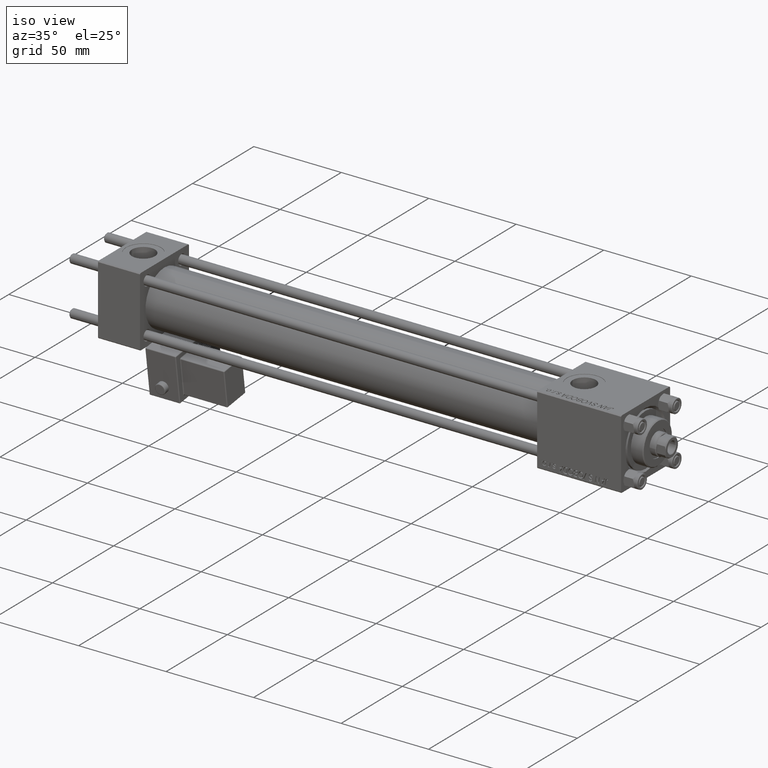
[diagram: clean part render]
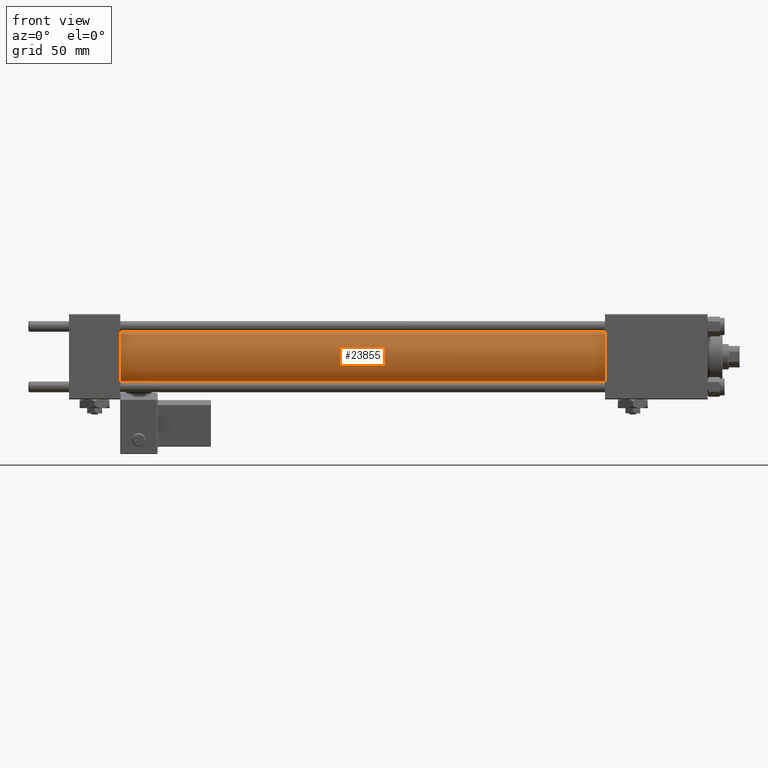
[diagram: tour spotlight — one face highlighted and labeled with its STEP entity id]
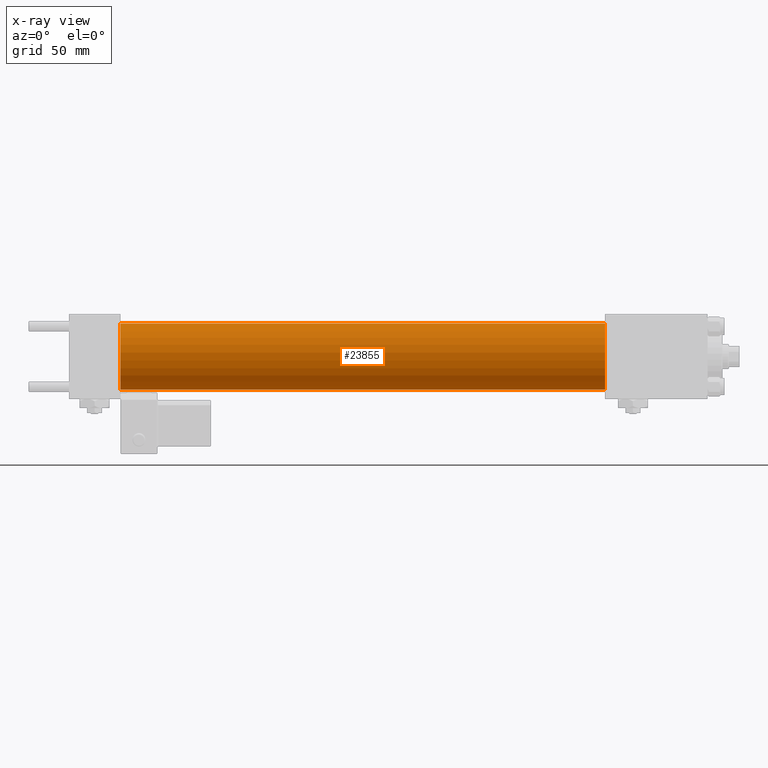
[diagram: x-ray of the same camera — body ghosted, this tour face saturated]
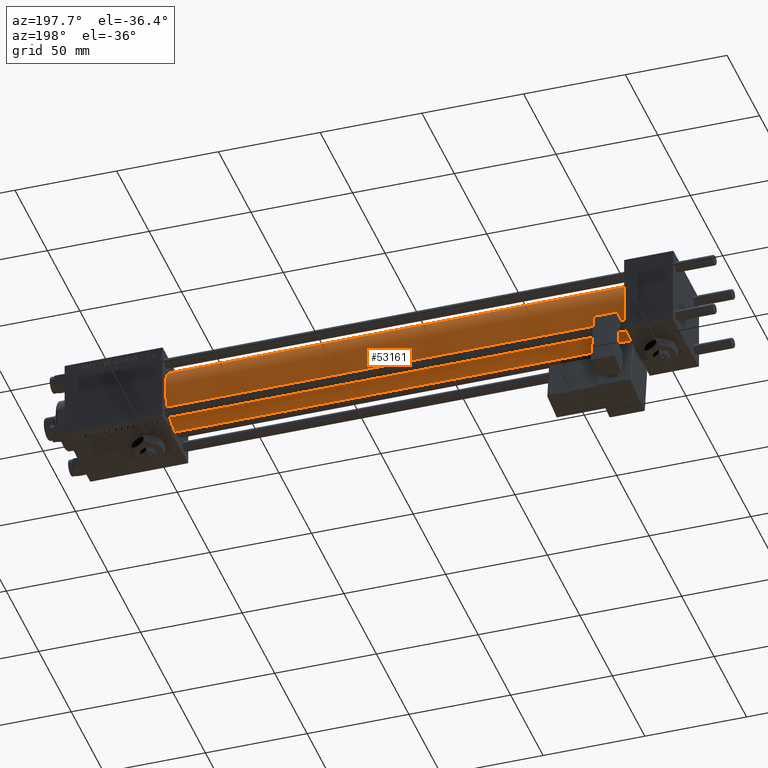
[diagram: tour spotlight — one face highlighted and labeled with its STEP entity id]
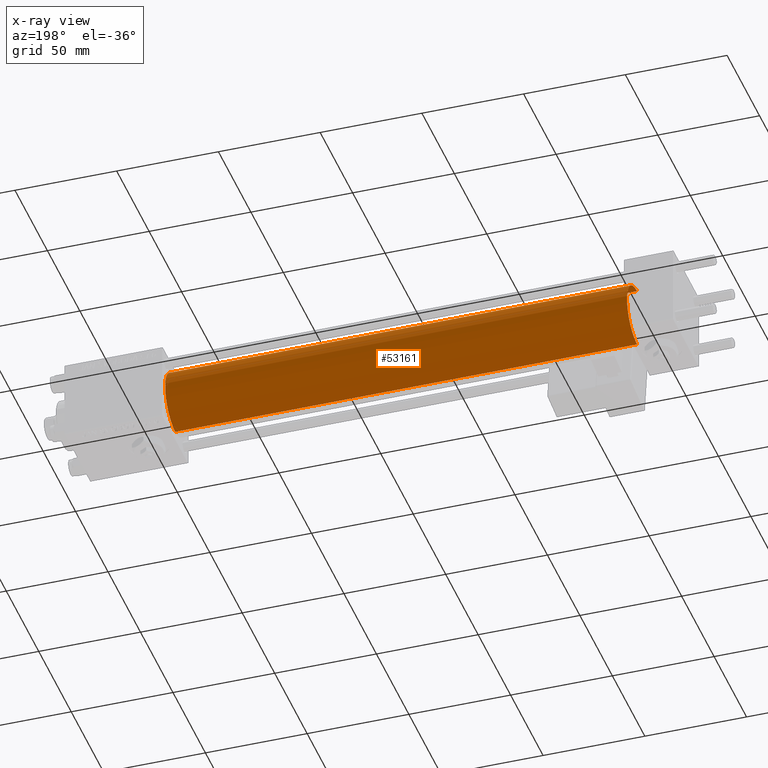
[diagram: x-ray of the same camera — body ghosted, this tour face saturated]
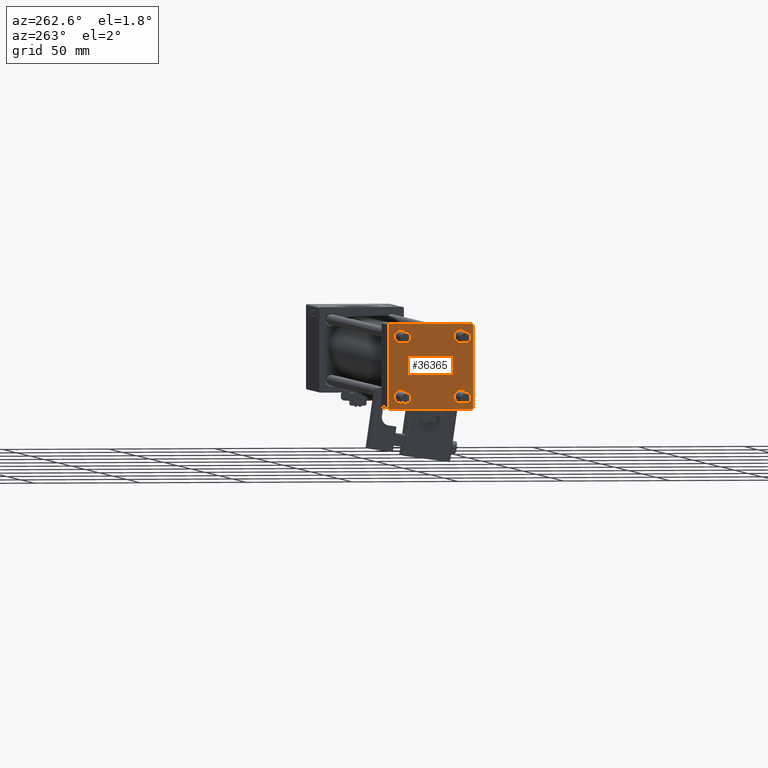
[diagram: tour spotlight — one face highlighted and labeled with its STEP entity id]
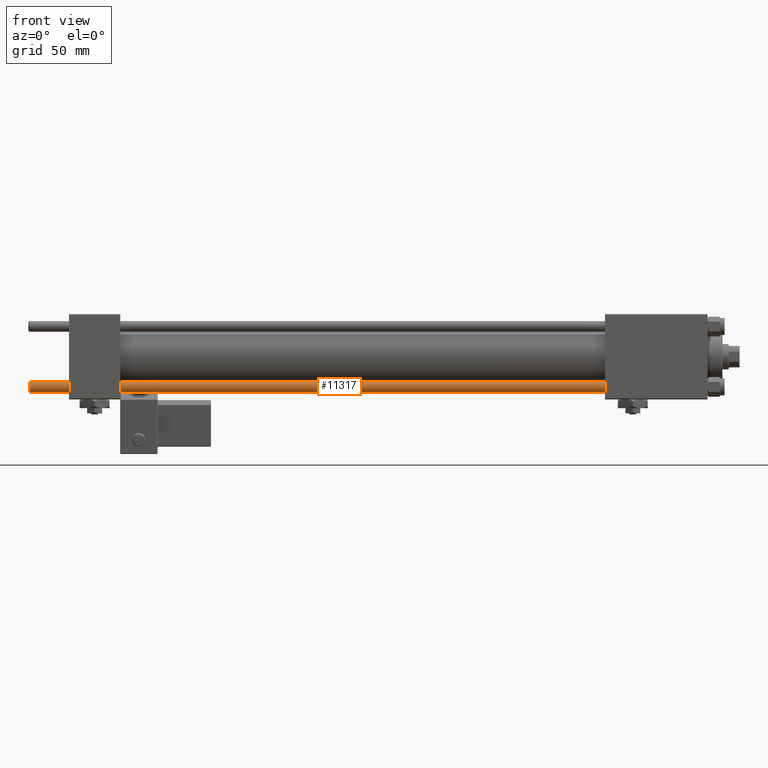
[diagram: tour spotlight — one face highlighted and labeled with its STEP entity id]
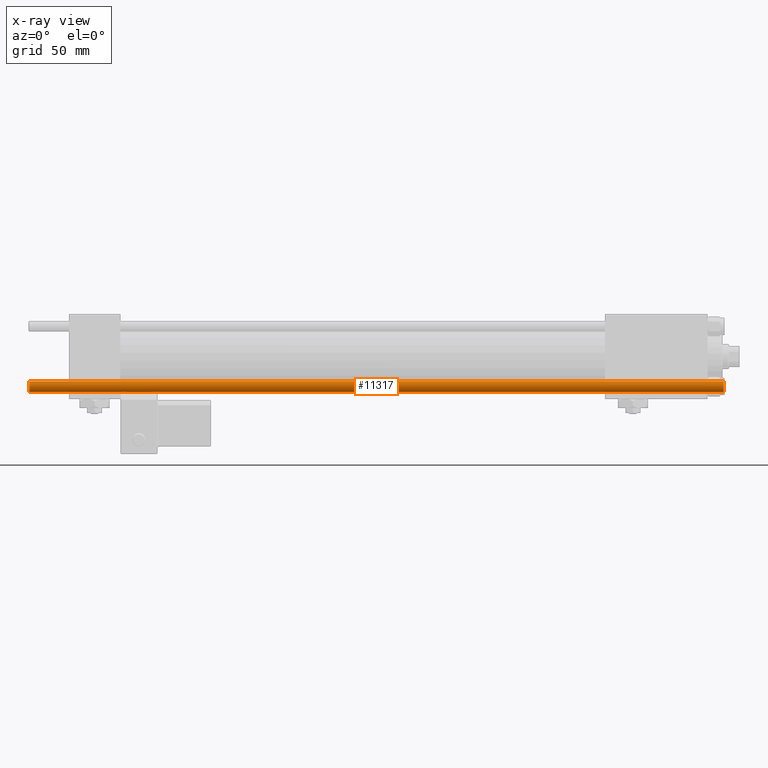
[diagram: x-ray of the same camera — body ghosted, this tour face saturated]
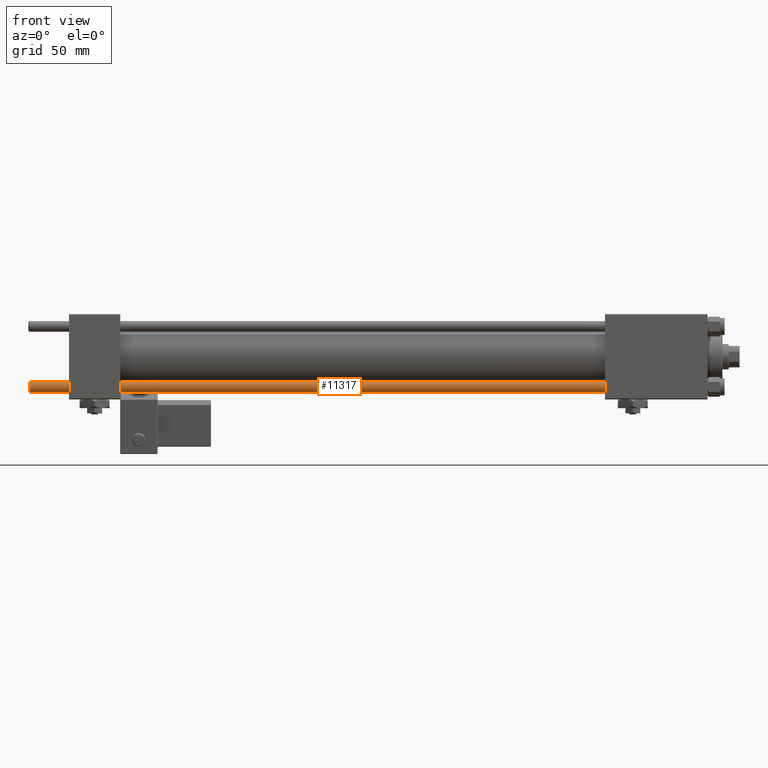
[diagram: tour spotlight — one face highlighted and labeled with its STEP entity id]
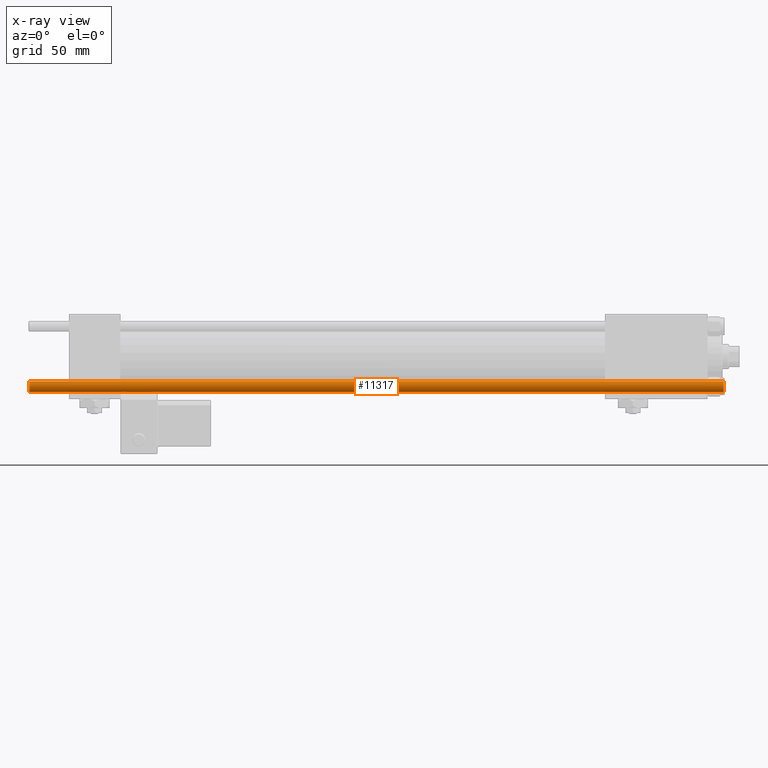
[diagram: x-ray of the same camera — body ghosted, this tour face saturated]
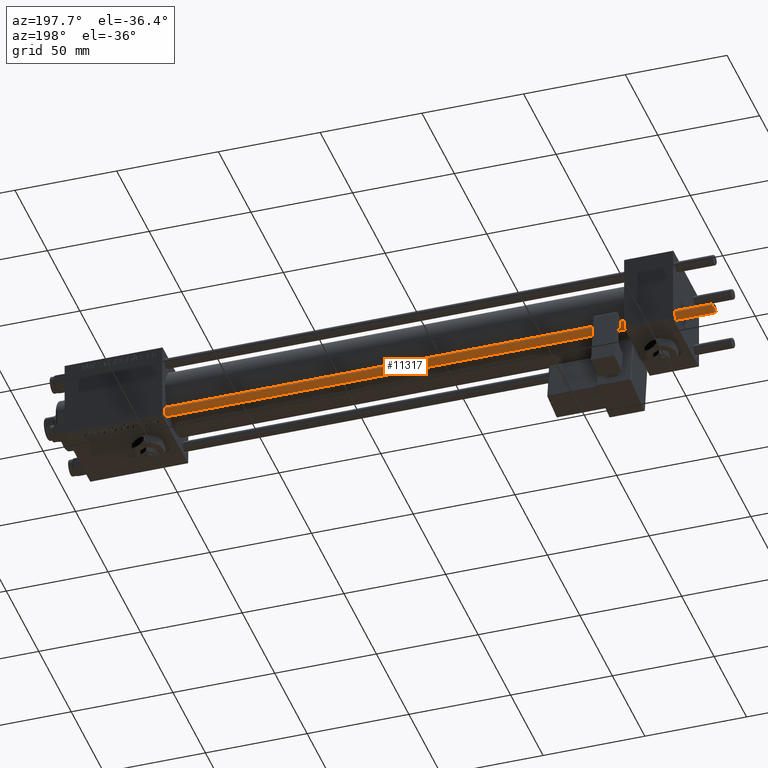
[diagram: tour spotlight — one face highlighted and labeled with its STEP entity id]
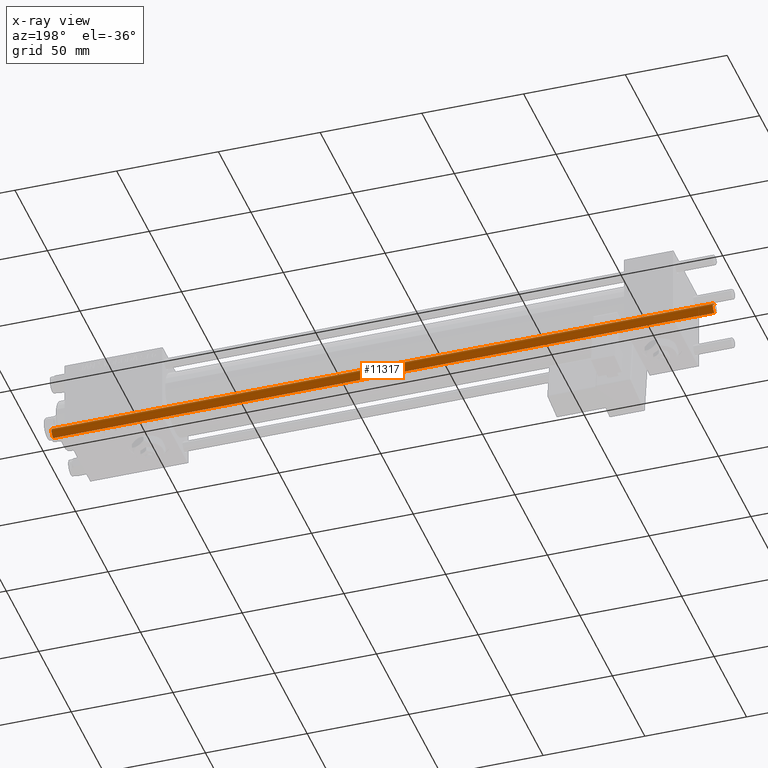
[diagram: x-ray of the same camera — body ghosted, this tour face saturated]
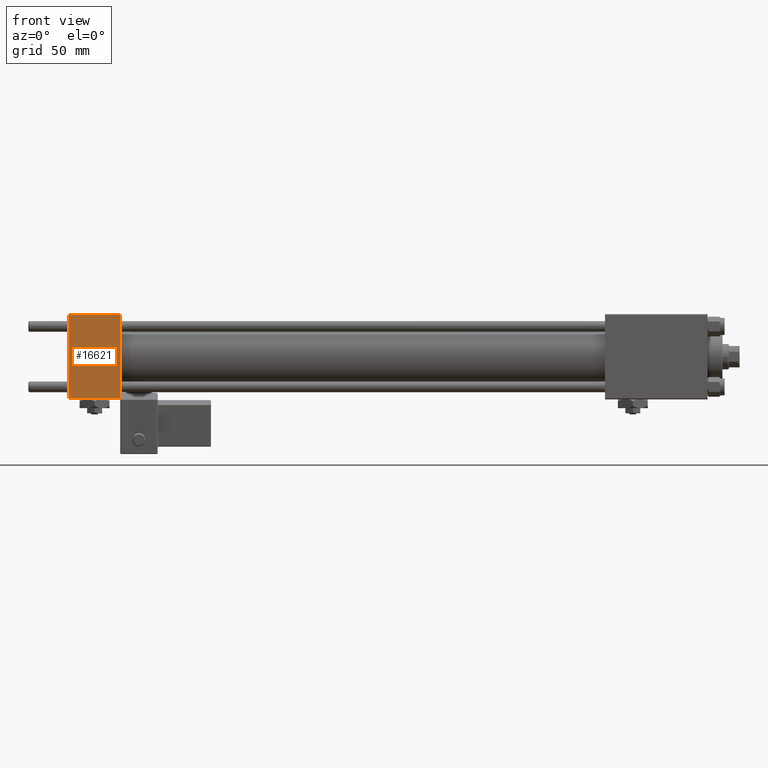
[diagram: tour spotlight — one face highlighted and labeled with its STEP entity id]
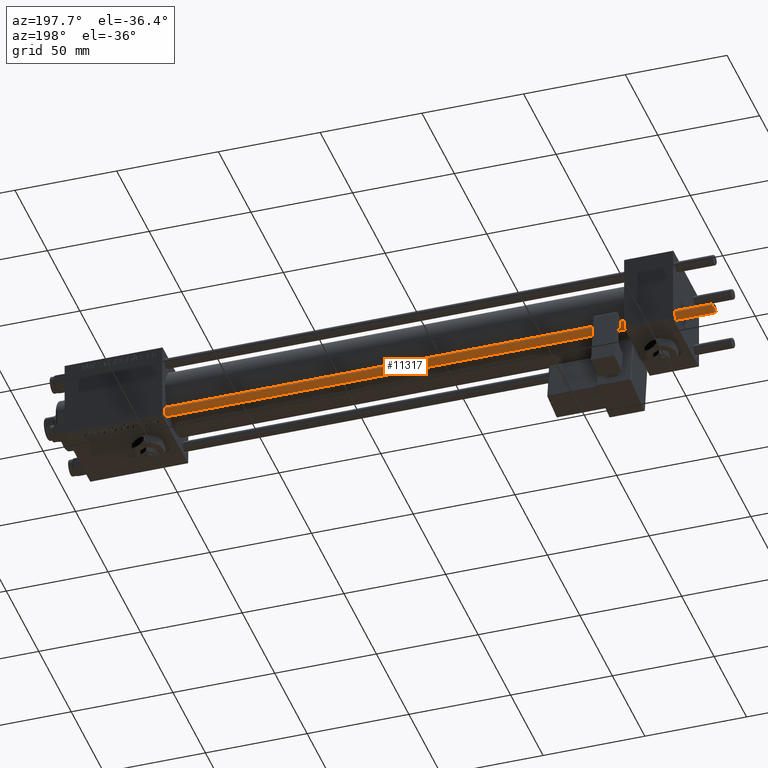
[diagram: tour spotlight — one face highlighted and labeled with its STEP entity id]
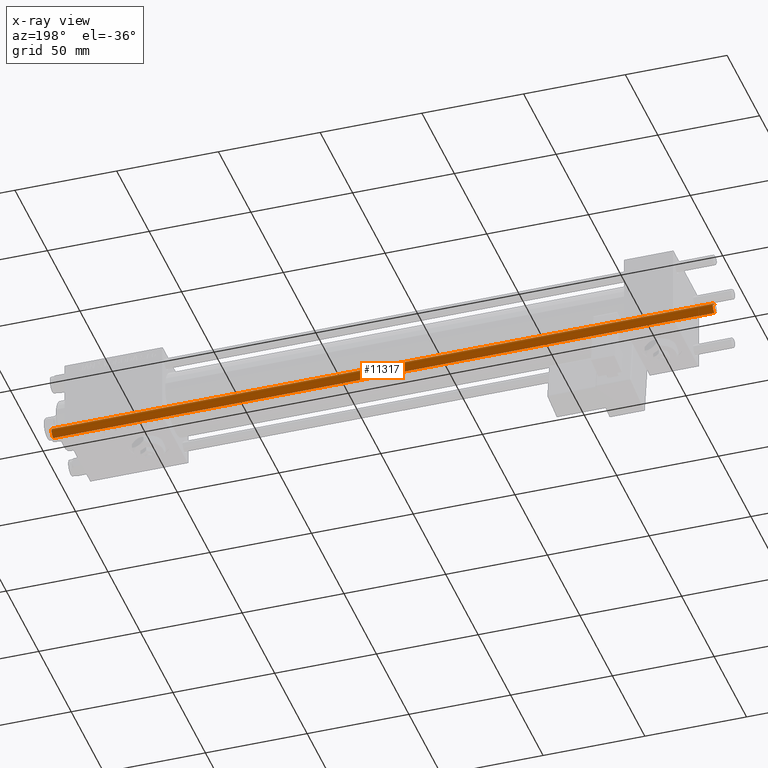
[diagram: x-ray of the same camera — body ghosted, this tour face saturated]
A machine part: a face-by-face anatomy tour. The part has 1311 B-rep faces; the first image is the clean iso view, then the 8 largest visible faces are spotlighted one at a time (largest first), each with its STEP entity span.

Face 1 — front view, entity #23855. An x-ray twin of the same camera follows (body ghosted, this face saturated) — the face is partly hidden behind the body. In plain terms, the highlighted cylindrical surface (edge-blend (fillet) strip) has radius 15.5 mm, axis along (-1, -0, -0).
Definition (entity closure, byte-faithful):
#946 = CYLINDRICAL_SURFACE ( 'NONE', #10931, 15.50000000000000000 ) ;
#2998 = DIRECTION ( 'NONE',  ( 0.000000000000000000, 0.000000000000000000, 1.000000000000000000 ) ) ;
#4496 = CARTESIAN_POINT ( 'NONE',  ( 251.0000000000000000, 0.000000000000000000, 0.000000000000000000 ) ) ;
#6963 = ORIENTED_EDGE ( 'NONE', *, *, #23385, .T. ) ;
#8125 = LINE ( 'NONE', #16332, #23955 ) ;
#8889 = DIRECTION ( 'NONE',  ( -1.000000000000000000, -0.000000000000000000, -0.000000000000000000 ) ) ;
#9141 = ORIENTED_EDGE ( 'NONE', *, *, #22615, .F. ) ;
#10931 = AXIS2_PLACEMENT_3D ( 'NONE', #4496, #8889, #21180 ) ;
#12029 = CARTESIAN_POINT ( 'NONE',  ( 23.99999999999999289, 0.000000000000000000, 15.50000000000000000 ) ) ;
#12908 = DIRECTION ( 'NONE',  ( 1.000000000000000000, 0.000000000000000000, 0.000000000000000000 ) ) ;
#13175 = CARTESIAN_POINT ( 'NONE',  ( 251.0000000000000000, 0.000000000000000000, 0.000000000000000000 ) ) ;
#13550 = VERTEX_POINT ( 'NONE', #22184 ) ;
#15181 = CIRCLE ( 'NONE', #21295, 15.50000000000000000 ) ;
#16332 = CARTESIAN_POINT ( 'NONE',  ( 251.0000000000000000, 0.000000000000000000, 15.50000000000000000 ) ) ;
#18175 = FACE_OUTER_BOUND ( 'NONE', #26411, .T. ) ;
#19003 = DIRECTION ( 'NONE',  ( -1.000000000000000000, -0.000000000000000000, -0.000000000000000000 ) ) ;
#19410 = DIRECTION ( 'NONE',  ( 1.000000000000000000, 0.000000000000000000, 0.000000000000000000 ) ) ;
#21180 = DIRECTION ( 'NONE',  ( 0.000000000000000000, 0.000000000000000000, 1.000000000000000000 ) ) ;
#21295 = AXIS2_PLACEMENT_3D ( 'NONE', #13175, #12908, #33673 ) ;
#22184 = CARTESIAN_POINT ( 'NONE',  ( 251.0000000000000000, 0.000000000000000000, 15.50000000000000000 ) ) ;
#22576 = LINE ( 'NONE', #48237, #26723 ) ;
#22615 = EDGE_CURVE ( 'NONE', #13550, #29349, #15181, .T. ) ;
#23385 = EDGE_CURVE ( 'NONE', #13550, #24224, #8125, .T. ) ;
#23855 = ADVANCED_FACE ( 'NONE', ( #18175 ), #946, .T. ) ;
#23955 = VECTOR ( 'NONE', #24268, 1000.000000000000000 ) ;
#24224 = VERTEX_POINT ( 'NONE', #12029 ) ;
#24268 = DIRECTION ( 'NONE',  ( -1.000000000000000000, -0.000000000000000000, -0.000000000000000000 ) ) ;
#24856 = CARTESIAN_POINT ( 'NONE',  ( 251.0000000000000000, 1.898202538678397163E-15, -15.50000000000000000 ) ) ;
#26411 = EDGE_LOOP ( 'NONE', ( #45268, #9141, #6963, #29631 ) ) ;
#26723 = VECTOR ( 'NONE', #19003, 1000.000000000000000 ) ;
#29252 = EDGE_CURVE ( 'NONE', #24224, #38761, #39061, .T. ) ;
#29349 = VERTEX_POINT ( 'NONE', #24856 ) ;
#29631 = ORIENTED_EDGE ( 'NONE', *, *, #29252, .T. ) ;
#33673 = DIRECTION ( 'NONE',  ( 0.000000000000000000, 0.000000000000000000, -1.000000000000000000 ) ) ;
#36964 = CARTESIAN_POINT ( 'NONE',  ( 23.99999999999999289, 1.898202538678397163E-15, -15.50000000000000000 ) ) ;
#38761 = VERTEX_POINT ( 'NONE', #36964 ) ;
#39061 = CIRCLE ( 'NONE', #44282, 15.50000000000000000 ) ;
#44282 = AXIS2_PLACEMENT_3D ( 'NONE', #47846, #19410, #2998 ) ;
#45268 = ORIENTED_EDGE ( 'NONE', *, *, #51855, .F. ) ;
#47846 = CARTESIAN_POINT ( 'NONE',  ( 23.99999999999999289, 0.000000000000000000, 0.000000000000000000 ) ) ;
#48237 = CARTESIAN_POINT ( 'NONE',  ( 251.0000000000000000, 1.898202538678397163E-15, -15.50000000000000000 ) ) ;
#51855 = EDGE_CURVE ( 'NONE', #29349, #38761, #22576, .T. ) ;

Face 2 — auxiliary view, entity #53161. An x-ray twin of the same camera follows (body ghosted, this face saturated) — the face is partly hidden behind the body. In plain terms, the highlighted cylindrical surface (edge-blend (fillet) strip) has radius 15.5 mm, axis along (-1, -0, -0).
Definition (entity closure, byte-faithful):
#1699 = ORIENTED_EDGE ( 'NONE', *, *, #51855, .T. ) ;
#4000 = DIRECTION ( 'NONE',  ( -1.000000000000000000, -0.000000000000000000, -0.000000000000000000 ) ) ;
#4803 = AXIS2_PLACEMENT_3D ( 'NONE', #23966, #49890, #16028 ) ;
#5895 = AXIS2_PLACEMENT_3D ( 'NONE', #41466, #4000, #29447 ) ;
#8125 = LINE ( 'NONE', #16332, #23955 ) ;
#9059 = EDGE_LOOP ( 'NONE', ( #14645, #1699, #10809, #34525 ) ) ;
#9633 = DIRECTION ( 'NONE',  ( 1.000000000000000000, 0.000000000000000000, 0.000000000000000000 ) ) ;
#10202 = EDGE_CURVE ( 'NONE', #38761, #24224, #41909, .T. ) ;
#10809 = ORIENTED_EDGE ( 'NONE', *, *, #10202, .T. ) ;
#12029 = CARTESIAN_POINT ( 'NONE',  ( 23.99999999999999289, 0.000000000000000000, 15.50000000000000000 ) ) ;
#13550 = VERTEX_POINT ( 'NONE', #22184 ) ;
#14645 = ORIENTED_EDGE ( 'NONE', *, *, #50796, .F. ) ;
#16028 = DIRECTION ( 'NONE',  ( 0.000000000000000000, 0.000000000000000000, -1.000000000000000000 ) ) ;
#16332 = CARTESIAN_POINT ( 'NONE',  ( 251.0000000000000000, 0.000000000000000000, 15.50000000000000000 ) ) ;
#19003 = DIRECTION ( 'NONE',  ( -1.000000000000000000, -0.000000000000000000, -0.000000000000000000 ) ) ;
#22184 = CARTESIAN_POINT ( 'NONE',  ( 251.0000000000000000, 0.000000000000000000, 15.50000000000000000 ) ) ;
#22576 = LINE ( 'NONE', #48237, #26723 ) ;
#22730 = AXIS2_PLACEMENT_3D ( 'NONE', #43518, #9633, #39415 ) ;
#23385 = EDGE_CURVE ( 'NONE', #13550, #24224, #8125, .T. ) ;
#23955 = VECTOR ( 'NONE', #24268, 1000.000000000000000 ) ;
#23966 = CARTESIAN_POINT ( 'NONE',  ( 251.0000000000000000, 0.000000000000000000, 0.000000000000000000 ) ) ;
#24224 = VERTEX_POINT ( 'NONE', #12029 ) ;
#24260 = FACE_OUTER_BOUND ( 'NONE', #9059, .T. ) ;
#24268 = DIRECTION ( 'NONE',  ( -1.000000000000000000, -0.000000000000000000, -0.000000000000000000 ) ) ;
#24856 = CARTESIAN_POINT ( 'NONE',  ( 251.0000000000000000, 1.898202538678397163E-15, -15.50000000000000000 ) ) ;
#26723 = VECTOR ( 'NONE', #19003, 1000.000000000000000 ) ;
#28364 = CYLINDRICAL_SURFACE ( 'NONE', #5895, 15.50000000000000000 ) ;
#29349 = VERTEX_POINT ( 'NONE', #24856 ) ;
#29447 = DIRECTION ( 'NONE',  ( 0.000000000000000000, 0.000000000000000000, 1.000000000000000000 ) ) ;
#34525 = ORIENTED_EDGE ( 'NONE', *, *, #23385, .F. ) ;
#36964 = CARTESIAN_POINT ( 'NONE',  ( 23.99999999999999289, 1.898202538678397163E-15, -15.50000000000000000 ) ) ;
#38761 = VERTEX_POINT ( 'NONE', #36964 ) ;
#39415 = DIRECTION ( 'NONE',  ( 0.000000000000000000, 0.000000000000000000, 1.000000000000000000 ) ) ;
#39746 = CIRCLE ( 'NONE', #4803, 15.50000000000000000 ) ;
#41466 = CARTESIAN_POINT ( 'NONE',  ( 251.0000000000000000, 0.000000000000000000, 0.000000000000000000 ) ) ;
#41909 = CIRCLE ( 'NONE', #22730, 15.50000000000000000 ) ;
#43518 = CARTESIAN_POINT ( 'NONE',  ( 23.99999999999999289, 0.000000000000000000, 0.000000000000000000 ) ) ;
#48237 = CARTESIAN_POINT ( 'NONE',  ( 251.0000000000000000, 1.898202538678397163E-15, -15.50000000000000000 ) ) ;
#49890 = DIRECTION ( 'NONE',  ( 1.000000000000000000, 0.000000000000000000, 0.000000000000000000 ) ) ;
#50796 = EDGE_CURVE ( 'NONE', #29349, #13550, #39746, .T. ) ;
#51855 = EDGE_CURVE ( 'NONE', #29349, #38761, #22576, .T. ) ;
#53161 = ADVANCED_FACE ( 'NONE', ( #24260 ), #28364, .T. ) ;

Face 3 — auxiliary view, entity #36365. In plain terms, the highlighted planar face has unit normal (-1, 0, 0).
Definition (entity closure, byte-faithful):
#1133 = AXIS2_PLACEMENT_3D ( 'NONE', #24377, #51542, #2794 ) ;
#2013 = VERTEX_POINT ( 'NONE', #13546 ) ;
#2659 = DIRECTION ( 'NONE',  ( -0.000000000000000000, 0.000000000000000000, 1.000000000000000000 ) ) ;
#2794 = DIRECTION ( 'NONE',  ( 0.000000000000000000, 0.000000000000000000, 1.000000000000000000 ) ) ;
#3087 = AXIS2_PLACEMENT_3D ( 'NONE', #46124, #8701, #21265 ) ;
#3697 = EDGE_CURVE ( 'NONE', #7763, #49478, #53796, .T. ) ;
#3941 = EDGE_CURVE ( 'NONE', #25539, #50806, #9537, .T. ) ;
#4336 = VECTOR ( 'NONE', #24572, 1000.000000000000114 ) ;
#4453 = EDGE_CURVE ( 'NONE', #50806, #2013, #49306, .T. ) ;
#4508 = ORIENTED_EDGE ( 'NONE', *, *, #42583, .T. ) ;
#4652 = AXIS2_PLACEMENT_3D ( 'NONE', #13562, #9470, #25603 ) ;
#5639 = EDGE_CURVE ( 'NONE', #7875, #25539, #45423, .T. ) ;
#6237 = FACE_BOUND ( 'NONE', #43883, .T. ) ;
#6513 = CARTESIAN_POINT ( 'NONE',  ( 0.000000000000000000, -14.14999999999999503, -11.15000000000000391 ) ) ;
#6751 = ORIENTED_EDGE ( 'NONE', *, *, #23759, .T. ) ;
#6768 = FACE_BOUND ( 'NONE', #9642, .T. ) ;
#6835 = DIRECTION ( 'NONE',  ( 0.000000000000000000, 0.7071067811865425767, -0.7071067811865525687 ) ) ;
#6919 = VERTEX_POINT ( 'NONE', #20231 ) ;
#7040 = PLANE ( 'NONE',  #25355 ) ;
#7763 = VERTEX_POINT ( 'NONE', #11350 ) ;
#7875 = VERTEX_POINT ( 'NONE', #26068 ) ;
#7891 = CARTESIAN_POINT ( 'NONE',  ( -0.000000000000000000, -19.74999999999992539, 19.75000000000006395 ) ) ;
#8701 = DIRECTION ( 'NONE',  ( 1.000000000000000000, 0.000000000000000000, 0.000000000000000000 ) ) ;
#9470 = DIRECTION ( 'NONE',  ( 1.000000000000000000, 0.000000000000000000, 0.000000000000000000 ) ) ;
#9537 = LINE ( 'NONE', #13628, #42662 ) ;
#9642 = EDGE_LOOP ( 'NONE', ( #36153, #39925 ) ) ;
#9657 = AXIS2_PLACEMENT_3D ( 'NONE', #36312, #48608, #32201 ) ;
#9813 = DIRECTION ( 'NONE',  ( 0.000000000000000000, -1.000000000000000000, 1.734723475976807094E-16 ) ) ;
#9975 = CARTESIAN_POINT ( 'NONE',  ( 0.000000000000000000, -14.14999999999999503, -17.15000000000000568 ) ) ;
#10002 = ORIENTED_EDGE ( 'NONE', *, *, #42555, .T. ) ;
#10573 = EDGE_CURVE ( 'NONE', #52975, #18391, #31457, .T. ) ;
#10893 = CIRCLE ( 'NONE', #26582, 3.000000000000000888 ) ;
#11258 = VECTOR ( 'NONE', #6835, 999.9999999999998863 ) ;
#11350 = CARTESIAN_POINT ( 'NONE',  ( 0.000000000000000000, 19.50000000000000000, 20.00000000000000000 ) ) ;
#11839 = EDGE_CURVE ( 'NONE', #23688, #44933, #22804, .T. ) ;
#12324 = VECTOR ( 'NONE', #37570, 1000.000000000000000 ) ;
#12437 = DIRECTION ( 'NONE',  ( 1.000000000000000000, 0.000000000000000000, 0.000000000000000000 ) ) ;
#12853 = CARTESIAN_POINT ( 'NONE',  ( 0.000000000000000000, 14.14999999999999858, 11.14999999999999858 ) ) ;
#12856 = VERTEX_POINT ( 'NONE', #30795 ) ;
#13099 = EDGE_CURVE ( 'NONE', #7763, #6919, #21160, .T. ) ;
#13546 = CARTESIAN_POINT ( 'NONE',  ( 0.000000000000000000, -20.00000000000000000, -19.49999999999999645 ) ) ;
#13562 = CARTESIAN_POINT ( 'NONE',  ( 0.000000000000000000, 14.14999999999999858, -14.15000000000000036 ) ) ;
#13608 = ORIENTED_EDGE ( 'NONE', *, *, #5639, .T. ) ;
#13628 = CARTESIAN_POINT ( 'NONE',  ( 0.000000000000000000, 20.00000000000000000, -20.00000000000000711 ) ) ;
#14691 = DIRECTION ( 'NONE',  ( 1.000000000000000000, 0.000000000000000000, 0.000000000000000000 ) ) ;
#15772 = DIRECTION ( 'NONE',  ( 0.000000000000000000, 0.000000000000000000, 1.000000000000000000 ) ) ;
#15814 = CARTESIAN_POINT ( 'NONE',  ( 0.000000000000000000, -20.00000000000000355, 19.49999999999998224 ) ) ;
#15959 = CIRCLE ( 'NONE', #1133, 3.000000000000000888 ) ;
#16402 = EDGE_CURVE ( 'NONE', #18391, #52975, #15959, .T. ) ;
#16527 = DIRECTION ( 'NONE',  ( 0.000000000000000000, 8.673617379884036705E-17, -1.000000000000000000 ) ) ;
#16722 = CIRCLE ( 'NONE', #28927, 3.000000000000000888 ) ;
#17646 = EDGE_LOOP ( 'NONE', ( #6751, #46071 ) ) ;
#18045 = CARTESIAN_POINT ( 'NONE',  ( 0.000000000000000000, 20.00000000000000000, 19.49999999999999289 ) ) ;
#18391 = VERTEX_POINT ( 'NONE', #9975 ) ;
#19012 = DIRECTION ( 'NONE',  ( 0.000000000000000000, -0.7071067811865401342, 0.7071067811865549002 ) ) ;
#19605 = CARTESIAN_POINT ( 'NONE',  ( 0.000000000000000000, -14.14999999999999503, 14.15000000000000391 ) ) ;
#19877 = FACE_BOUND ( 'NONE', #17646, .T. ) ;
#20231 = CARTESIAN_POINT ( 'NONE',  ( 0.000000000000000000, -19.49999999999999289, 19.99999999999998934 ) ) ;
#20655 = CARTESIAN_POINT ( 'NONE',  ( 0.000000000000000000, -19.50000000000000711, -20.00000000000000000 ) ) ;
#21160 = LINE ( 'NONE', #26350, #12324 ) ;
#21265 = DIRECTION ( 'NONE',  ( 0.000000000000000000, 0.000000000000000000, 1.000000000000000000 ) ) ;
#22017 = EDGE_LOOP ( 'NONE', ( #10002, #13608, #34558, #46147, #29358, #28859, #28181, #29723 ) ) ;
#22156 = VERTEX_POINT ( 'NONE', #40128 ) ;
#22537 = VECTOR ( 'NONE', #19012, 1000.000000000000000 ) ;
#22804 = CIRCLE ( 'NONE', #41994, 3.000000000000000888 ) ;
#23033 = CARTESIAN_POINT ( 'NONE',  ( 0.000000000000000000, -14.14999999999999503, 17.15000000000000568 ) ) ;
#23450 = CARTESIAN_POINT ( 'NONE',  ( 0.000000000000000000, 0.000000000000000000, 0.000000000000000000 ) ) ;
#23688 = VERTEX_POINT ( 'NONE', #28844 ) ;
#23759 = EDGE_CURVE ( 'NONE', #44933, #23688, #10893, .T. ) ;
#24193 = CARTESIAN_POINT ( 'NONE',  ( 0.000000000000000000, 19.50000000000000711, -20.00000000000000711 ) ) ;
#24203 = DIRECTION ( 'NONE',  ( 0.000000000000000000, 0.000000000000000000, 1.000000000000000000 ) ) ;
#24377 = CARTESIAN_POINT ( 'NONE',  ( 0.000000000000000000, -14.14999999999999503, -14.15000000000000391 ) ) ;
#24572 = DIRECTION ( 'NONE',  ( -0.000000000000000000, 0.7071067811865500152, 0.7071067811865451302 ) ) ;
#25355 = AXIS2_PLACEMENT_3D ( 'NONE', #23450, #40117, #2659 ) ;
#25539 = VERTEX_POINT ( 'NONE', #24193 ) ;
#25603 = DIRECTION ( 'NONE',  ( 0.000000000000000000, 0.000000000000000000, 1.000000000000000000 ) ) ;
#25629 = CIRCLE ( 'NONE', #4652, 3.000000000000000888 ) ;
#26068 = CARTESIAN_POINT ( 'NONE',  ( 0.000000000000000000, 20.00000000000000000, -19.50000000000002132 ) ) ;
#26350 = CARTESIAN_POINT ( 'NONE',  ( 0.000000000000000000, 20.00000000000000000, 20.00000000000000000 ) ) ;
#26582 = AXIS2_PLACEMENT_3D ( 'NONE', #32663, #12437, #24203 ) ;
#27142 = VERTEX_POINT ( 'NONE', #12853 ) ;
#27144 = AXIS2_PLACEMENT_3D ( 'NONE', #46996, #48076, #34976 ) ;
#27216 = EDGE_LOOP ( 'NONE', ( #4508, #40152 ) ) ;
#27757 = CARTESIAN_POINT ( 'NONE',  ( 0.000000000000000000, -19.75000000000020961, -19.74999999999979394 ) ) ;
#28181 = ORIENTED_EDGE ( 'NONE', *, *, #13099, .F. ) ;
#28675 = LINE ( 'NONE', #7891, #4336 ) ;
#28844 = CARTESIAN_POINT ( 'NONE',  ( 0.000000000000000000, -14.14999999999999503, 11.15000000000000213 ) ) ;
#28859 = ORIENTED_EDGE ( 'NONE', *, *, #35496, .T. ) ;
#28927 = AXIS2_PLACEMENT_3D ( 'NONE', #47206, #14691, #31355 ) ;
#29358 = ORIENTED_EDGE ( 'NONE', *, *, #48147, .F. ) ;
#29723 = ORIENTED_EDGE ( 'NONE', *, *, #3697, .T. ) ;
#30554 = LINE ( 'NONE', #51305, #44656 ) ;
#30795 = CARTESIAN_POINT ( 'NONE',  ( 0.000000000000000000, 14.14999999999999858, -11.15000000000000036 ) ) ;
#31355 = DIRECTION ( 'NONE',  ( 0.000000000000000000, 0.000000000000000000, 1.000000000000000000 ) ) ;
#31457 = CIRCLE ( 'NONE', #9657, 3.000000000000000888 ) ;
#31788 = VERTEX_POINT ( 'NONE', #40155 ) ;
#32201 = DIRECTION ( 'NONE',  ( 0.000000000000000000, 0.000000000000000000, 1.000000000000000000 ) ) ;
#32420 = ORIENTED_EDGE ( 'NONE', *, *, #10573, .T. ) ;
#32663 = CARTESIAN_POINT ( 'NONE',  ( 0.000000000000000000, -14.14999999999999503, 14.15000000000000391 ) ) ;
#32998 = VECTOR ( 'NONE', #53617, 1000.000000000000000 ) ;
#34558 = ORIENTED_EDGE ( 'NONE', *, *, #3941, .T. ) ;
#34976 = DIRECTION ( 'NONE',  ( 0.000000000000000000, 0.000000000000000000, 1.000000000000000000 ) ) ;
#35496 = EDGE_CURVE ( 'NONE', #49634, #6919, #28675, .T. ) ;
#36021 = FACE_BOUND ( 'NONE', #27216, .T. ) ;
#36153 = ORIENTED_EDGE ( 'NONE', *, *, #50647, .T. ) ;
#36312 = CARTESIAN_POINT ( 'NONE',  ( 0.000000000000000000, -14.14999999999999503, -14.15000000000000391 ) ) ;
#36365 = ADVANCED_FACE ( 'NONE', ( #19877, #6237, #6768, #36021, #51875 ), #7040, .T. ) ;
#36703 = CARTESIAN_POINT ( 'NONE',  ( -0.000000000000000000, 19.74999999999986855, -19.75000000000014211 ) ) ;
#37025 = CARTESIAN_POINT ( 'NONE',  ( 0.000000000000000000, -20.00000000000000355, 19.99999999999998934 ) ) ;
#37570 = DIRECTION ( 'NONE',  ( 0.000000000000000000, -1.000000000000000000, -2.602085213965210149E-16 ) ) ;
#39925 = ORIENTED_EDGE ( 'NONE', *, *, #47031, .T. ) ;
#40117 = DIRECTION ( 'NONE',  ( -1.000000000000000000, 0.000000000000000000, -0.000000000000000000 ) ) ;
#40128 = CARTESIAN_POINT ( 'NONE',  ( 0.000000000000000000, 14.14999999999999858, -17.15000000000000213 ) ) ;
#40152 = ORIENTED_EDGE ( 'NONE', *, *, #40873, .T. ) ;
#40155 = CARTESIAN_POINT ( 'NONE',  ( 0.000000000000000000, 14.14999999999999858, 17.15000000000000568 ) ) ;
#40873 = EDGE_CURVE ( 'NONE', #27142, #31788, #44582, .T. ) ;
#41115 = LINE ( 'NONE', #37025, #50096 ) ;
#41994 = AXIS2_PLACEMENT_3D ( 'NONE', #19605, #45004, #15772 ) ;
#42555 = EDGE_CURVE ( 'NONE', #49478, #7875, #30554, .T. ) ;
#42583 = EDGE_CURVE ( 'NONE', #31788, #27142, #16722, .T. ) ;
#42662 = VECTOR ( 'NONE', #9813, 1000.000000000000000 ) ;
#43883 = EDGE_LOOP ( 'NONE', ( #32420, #53720 ) ) ;
#43931 = DIRECTION ( 'NONE',  ( 0.000000000000000000, 0.000000000000000000, -1.000000000000000000 ) ) ;
#44108 = CIRCLE ( 'NONE', #3087, 3.000000000000000888 ) ;
#44283 = CARTESIAN_POINT ( 'NONE',  ( -0.000000000000000000, 19.75000000000013500, 19.74999999999986144 ) ) ;
#44582 = CIRCLE ( 'NONE', #27144, 3.000000000000000888 ) ;
#44656 = VECTOR ( 'NONE', #43931, 1000.000000000000000 ) ;
#44933 = VERTEX_POINT ( 'NONE', #23033 ) ;
#45004 = DIRECTION ( 'NONE',  ( 1.000000000000000000, 0.000000000000000000, 0.000000000000000000 ) ) ;
#45423 = LINE ( 'NONE', #36703, #32998 ) ;
#46071 = ORIENTED_EDGE ( 'NONE', *, *, #11839, .T. ) ;
#46124 = CARTESIAN_POINT ( 'NONE',  ( 0.000000000000000000, 14.14999999999999858, -14.15000000000000036 ) ) ;
#46147 = ORIENTED_EDGE ( 'NONE', *, *, #4453, .T. ) ;
#46996 = CARTESIAN_POINT ( 'NONE',  ( 0.000000000000000000, 14.14999999999999858, 14.15000000000000036 ) ) ;
#47031 = EDGE_CURVE ( 'NONE', #22156, #12856, #25629, .T. ) ;
#47206 = CARTESIAN_POINT ( 'NONE',  ( 0.000000000000000000, 14.14999999999999858, 14.15000000000000036 ) ) ;
#48076 = DIRECTION ( 'NONE',  ( 1.000000000000000000, 0.000000000000000000, 0.000000000000000000 ) ) ;
#48147 = EDGE_CURVE ( 'NONE', #49634, #2013, #41115, .T. ) ;
#48608 = DIRECTION ( 'NONE',  ( 1.000000000000000000, 0.000000000000000000, 0.000000000000000000 ) ) ;
#49306 = LINE ( 'NONE', #27757, #22537 ) ;
#49478 = VERTEX_POINT ( 'NONE', #18045 ) ;
#49634 = VERTEX_POINT ( 'NONE', #15814 ) ;
#50096 = VECTOR ( 'NONE', #16527, 1000.000000000000000 ) ;
#50647 = EDGE_CURVE ( 'NONE', #12856, #22156, #44108, .T. ) ;
#50806 = VERTEX_POINT ( 'NONE', #20655 ) ;
#51305 = CARTESIAN_POINT ( 'NONE',  ( 0.000000000000000000, 20.00000000000000000, 20.00000000000000000 ) ) ;
#51542 = DIRECTION ( 'NONE',  ( 1.000000000000000000, 0.000000000000000000, 0.000000000000000000 ) ) ;
#51875 = FACE_OUTER_BOUND ( 'NONE', #22017, .T. ) ;
#52975 = VERTEX_POINT ( 'NONE', #6513 ) ;
#53617 = DIRECTION ( 'NONE',  ( -0.000000000000000000, -0.7071067811865524577, -0.7071067811865426878 ) ) ;
#53720 = ORIENTED_EDGE ( 'NONE', *, *, #16402, .T. ) ;
#53796 = LINE ( 'NONE', #44283, #11258 ) ;

Face 4 — front view, entity #11317. An x-ray twin of the same camera follows (body ghosted, this face saturated) — the face is partly hidden behind the body. In plain terms, the highlighted cylindrical surface (edge-blend (fillet) strip) has radius 2.5 mm, axis along (1, -0, 0).
Definition (entity closure, byte-faithful):
#2662 = DIRECTION ( 'NONE',  ( 0.000000000000000000, 0.000000000000000000, -1.000000000000000000 ) ) ;
#4456 = CYLINDRICAL_SURFACE ( 'NONE', #12288, 2.500000000000000000 ) ;
#4758 = LINE ( 'NONE', #34000, #39579 ) ;
#6431 = ORIENTED_EDGE ( 'NONE', *, *, #17528, .F. ) ;
#8836 = CARTESIAN_POINT ( 'NONE',  ( 2.500000000000000000, 3.061616997868383141E-16, 0.4999999999999449329 ) ) ;
#9687 = DIRECTION ( 'NONE',  ( -0.000000000000000000, -0.000000000000000000, -1.000000000000000000 ) ) ;
#10142 = AXIS2_PLACEMENT_3D ( 'NONE', #31917, #2662, #44489 ) ;
#11317 = ADVANCED_FACE ( 'NONE', ( #12394 ), #4456, .T. ) ;
#12288 = AXIS2_PLACEMENT_3D ( 'NONE', #41642, #16779, #47293 ) ;
#12346 = DIRECTION ( 'NONE',  ( -0.000000000000000000, -0.000000000000000000, 1.000000000000000000 ) ) ;
#12394 = FACE_OUTER_BOUND ( 'NONE', #22843, .T. ) ;
#13750 = VERTEX_POINT ( 'NONE', #47572 ) ;
#16779 = DIRECTION ( 'NONE',  ( -0.000000000000000000, -0.000000000000000000, -1.000000000000000000 ) ) ;
#17528 = EDGE_CURVE ( 'NONE', #20607, #17584, #4758, .T. ) ;
#17584 = VERTEX_POINT ( 'NONE', #52556 ) ;
#18288 = LINE ( 'NONE', #19078, #34713 ) ;
#18556 = DIRECTION ( 'NONE',  ( -0.000000000000000000, -0.000000000000000000, -1.000000000000000000 ) ) ;
#19078 = CARTESIAN_POINT ( 'NONE',  ( 2.500000000000000000, 3.061616997868383141E-16, 326.0000000000000000 ) ) ;
#20607 = VERTEX_POINT ( 'NONE', #34514 ) ;
#22843 = EDGE_LOOP ( 'NONE', ( #37624, #25669, #31290, #6431 ) ) ;
#24835 = EDGE_CURVE ( 'NONE', #44740, #17584, #53695, .T. ) ;
#25669 = ORIENTED_EDGE ( 'NONE', *, *, #29578, .T. ) ;
#28754 = DIRECTION ( 'NONE',  ( 1.000000000000000000, 0.000000000000000000, 0.000000000000000000 ) ) ;
#29578 = EDGE_CURVE ( 'NONE', #13750, #44740, #18288, .T. ) ;
#31290 = ORIENTED_EDGE ( 'NONE', *, *, #24835, .T. ) ;
#31917 = CARTESIAN_POINT ( 'NONE',  ( 0.000000000000000000, 0.000000000000000000, 325.5000000000000000 ) ) ;
#33681 = CIRCLE ( 'NONE', #10142, 2.500000000000000000 ) ;
#34000 = CARTESIAN_POINT ( 'NONE',  ( -2.500000000000000000, 0.000000000000000000, 326.0000000000000000 ) ) ;
#34514 = CARTESIAN_POINT ( 'NONE',  ( -2.500000000000000000, 0.000000000000000000, 325.5000000000000000 ) ) ;
#34713 = VECTOR ( 'NONE', #18556, 1000.000000000000000 ) ;
#37624 = ORIENTED_EDGE ( 'NONE', *, *, #51963, .T. ) ;
#39579 = VECTOR ( 'NONE', #9687, 1000.000000000000000 ) ;
#41642 = CARTESIAN_POINT ( 'NONE',  ( 0.000000000000000000, 0.000000000000000000, 326.0000000000000000 ) ) ;
#44489 = DIRECTION ( 'NONE',  ( 1.000000000000000000, 0.000000000000000000, 0.000000000000000000 ) ) ;
#44740 = VERTEX_POINT ( 'NONE', #8836 ) ;
#45823 = AXIS2_PLACEMENT_3D ( 'NONE', #49777, #12346, #28754 ) ;
#47293 = DIRECTION ( 'NONE',  ( -1.000000000000000000, 0.000000000000000000, 0.000000000000000000 ) ) ;
#47572 = CARTESIAN_POINT ( 'NONE',  ( 2.500000000000000000, 3.061616997868383141E-16, 325.5000000000000000 ) ) ;
#49777 = CARTESIAN_POINT ( 'NONE',  ( 0.000000000000000000, 0.000000000000000000, 0.4999999999999449329 ) ) ;
#51963 = EDGE_CURVE ( 'NONE', #20607, #13750, #33681, .T. ) ;
#52556 = CARTESIAN_POINT ( 'NONE',  ( -2.500000000000000000, 0.000000000000000000, 0.4999999999999449329 ) ) ;
#53695 = CIRCLE ( 'NONE', #45823, 2.500000000000000000 ) ;

Face 5 — front view, entity #11317. An x-ray twin of the same camera follows (body ghosted, this face saturated) — the face is partly hidden behind the body. In plain terms, the highlighted cylindrical surface (edge-blend (fillet) strip) has radius 2.5 mm, axis along (-1, 0, 0).
Definition (entity closure, byte-faithful):
#2662 = DIRECTION ( 'NONE',  ( 0.000000000000000000, 0.000000000000000000, -1.000000000000000000 ) ) ;
#4456 = CYLINDRICAL_SURFACE ( 'NONE', #12288, 2.500000000000000000 ) ;
#4758 = LINE ( 'NONE', #34000, #39579 ) ;
#6431 = ORIENTED_EDGE ( 'NONE', *, *, #17528, .F. ) ;
#8836 = CARTESIAN_POINT ( 'NONE',  ( 2.500000000000000000, 3.061616997868383141E-16, 0.4999999999999449329 ) ) ;
#9687 = DIRECTION ( 'NONE',  ( -0.000000000000000000, -0.000000000000000000, -1.000000000000000000 ) ) ;
#10142 = AXIS2_PLACEMENT_3D ( 'NONE', #31917, #2662, #44489 ) ;
#11317 = ADVANCED_FACE ( 'NONE', ( #12394 ), #4456, .T. ) ;
#12288 = AXIS2_PLACEMENT_3D ( 'NONE', #41642, #16779, #47293 ) ;
#12346 = DIRECTION ( 'NONE',  ( -0.000000000000000000, -0.000000000000000000, 1.000000000000000000 ) ) ;
#12394 = FACE_OUTER_BOUND ( 'NONE', #22843, .T. ) ;
#13750 = VERTEX_POINT ( 'NONE', #47572 ) ;
#16779 = DIRECTION ( 'NONE',  ( -0.000000000000000000, -0.000000000000000000, -1.000000000000000000 ) ) ;
#17528 = EDGE_CURVE ( 'NONE', #20607, #17584, #4758, .T. ) ;
#17584 = VERTEX_POINT ( 'NONE', #52556 ) ;
#18288 = LINE ( 'NONE', #19078, #34713 ) ;
#18556 = DIRECTION ( 'NONE',  ( -0.000000000000000000, -0.000000000000000000, -1.000000000000000000 ) ) ;
#19078 = CARTESIAN_POINT ( 'NONE',  ( 2.500000000000000000, 3.061616997868383141E-16, 326.0000000000000000 ) ) ;
#20607 = VERTEX_POINT ( 'NONE', #34514 ) ;
#22843 = EDGE_LOOP ( 'NONE', ( #37624, #25669, #31290, #6431 ) ) ;
#24835 = EDGE_CURVE ( 'NONE', #44740, #17584, #53695, .T. ) ;
#25669 = ORIENTED_EDGE ( 'NONE', *, *, #29578, .T. ) ;
#28754 = DIRECTION ( 'NONE',  ( 1.000000000000000000, 0.000000000000000000, 0.000000000000000000 ) ) ;
#29578 = EDGE_CURVE ( 'NONE', #13750, #44740, #18288, .T. ) ;
#31290 = ORIENTED_EDGE ( 'NONE', *, *, #24835, .T. ) ;
#31917 = CARTESIAN_POINT ( 'NONE',  ( 0.000000000000000000, 0.000000000000000000, 325.5000000000000000 ) ) ;
#33681 = CIRCLE ( 'NONE', #10142, 2.500000000000000000 ) ;
#34000 = CARTESIAN_POINT ( 'NONE',  ( -2.500000000000000000, 0.000000000000000000, 326.0000000000000000 ) ) ;
#34514 = CARTESIAN_POINT ( 'NONE',  ( -2.500000000000000000, 0.000000000000000000, 325.5000000000000000 ) ) ;
#34713 = VECTOR ( 'NONE', #18556, 1000.000000000000000 ) ;
#37624 = ORIENTED_EDGE ( 'NONE', *, *, #51963, .T. ) ;
#39579 = VECTOR ( 'NONE', #9687, 1000.000000000000000 ) ;
#41642 = CARTESIAN_POINT ( 'NONE',  ( 0.000000000000000000, 0.000000000000000000, 326.0000000000000000 ) ) ;
#44489 = DIRECTION ( 'NONE',  ( 1.000000000000000000, 0.000000000000000000, 0.000000000000000000 ) ) ;
#44740 = VERTEX_POINT ( 'NONE', #8836 ) ;
#45823 = AXIS2_PLACEMENT_3D ( 'NONE', #49777, #12346, #28754 ) ;
#47293 = DIRECTION ( 'NONE',  ( -1.000000000000000000, 0.000000000000000000, 0.000000000000000000 ) ) ;
#47572 = CARTESIAN_POINT ( 'NONE',  ( 2.500000000000000000, 3.061616997868383141E-16, 325.5000000000000000 ) ) ;
#49777 = CARTESIAN_POINT ( 'NONE',  ( 0.000000000000000000, 0.000000000000000000, 0.4999999999999449329 ) ) ;
#51963 = EDGE_CURVE ( 'NONE', #20607, #13750, #33681, .T. ) ;
#52556 = CARTESIAN_POINT ( 'NONE',  ( -2.500000000000000000, 0.000000000000000000, 0.4999999999999449329 ) ) ;
#53695 = CIRCLE ( 'NONE', #45823, 2.500000000000000000 ) ;

Face 6 — auxiliary view, entity #11317. An x-ray twin of the same camera follows (body ghosted, this face saturated) — the face is partly hidden behind the body. In plain terms, the highlighted cylindrical surface (edge-blend (fillet) strip) has radius 2.5 mm, axis along (-1, -0, -0).
Definition (entity closure, byte-faithful):
#2662 = DIRECTION ( 'NONE',  ( 0.000000000000000000, 0.000000000000000000, -1.000000000000000000 ) ) ;
#4456 = CYLINDRICAL_SURFACE ( 'NONE', #12288, 2.500000000000000000 ) ;
#4758 = LINE ( 'NONE', #34000, #39579 ) ;
#6431 = ORIENTED_EDGE ( 'NONE', *, *, #17528, .F. ) ;
#8836 = CARTESIAN_POINT ( 'NONE',  ( 2.500000000000000000, 3.061616997868383141E-16, 0.4999999999999449329 ) ) ;
#9687 = DIRECTION ( 'NONE',  ( -0.000000000000000000, -0.000000000000000000, -1.000000000000000000 ) ) ;
#10142 = AXIS2_PLACEMENT_3D ( 'NONE', #31917, #2662, #44489 ) ;
#11317 = ADVANCED_FACE ( 'NONE', ( #12394 ), #4456, .T. ) ;
#12288 = AXIS2_PLACEMENT_3D ( 'NONE', #41642, #16779, #47293 ) ;
#12346 = DIRECTION ( 'NONE',  ( -0.000000000000000000, -0.000000000000000000, 1.000000000000000000 ) ) ;
#12394 = FACE_OUTER_BOUND ( 'NONE', #22843, .T. ) ;
#13750 = VERTEX_POINT ( 'NONE', #47572 ) ;
#16779 = DIRECTION ( 'NONE',  ( -0.000000000000000000, -0.000000000000000000, -1.000000000000000000 ) ) ;
#17528 = EDGE_CURVE ( 'NONE', #20607, #17584, #4758, .T. ) ;
#17584 = VERTEX_POINT ( 'NONE', #52556 ) ;
#18288 = LINE ( 'NONE', #19078, #34713 ) ;
#18556 = DIRECTION ( 'NONE',  ( -0.000000000000000000, -0.000000000000000000, -1.000000000000000000 ) ) ;
#19078 = CARTESIAN_POINT ( 'NONE',  ( 2.500000000000000000, 3.061616997868383141E-16, 326.0000000000000000 ) ) ;
#20607 = VERTEX_POINT ( 'NONE', #34514 ) ;
#22843 = EDGE_LOOP ( 'NONE', ( #37624, #25669, #31290, #6431 ) ) ;
#24835 = EDGE_CURVE ( 'NONE', #44740, #17584, #53695, .T. ) ;
#25669 = ORIENTED_EDGE ( 'NONE', *, *, #29578, .T. ) ;
#28754 = DIRECTION ( 'NONE',  ( 1.000000000000000000, 0.000000000000000000, 0.000000000000000000 ) ) ;
#29578 = EDGE_CURVE ( 'NONE', #13750, #44740, #18288, .T. ) ;
#31290 = ORIENTED_EDGE ( 'NONE', *, *, #24835, .T. ) ;
#31917 = CARTESIAN_POINT ( 'NONE',  ( 0.000000000000000000, 0.000000000000000000, 325.5000000000000000 ) ) ;
#33681 = CIRCLE ( 'NONE', #10142, 2.500000000000000000 ) ;
#34000 = CARTESIAN_POINT ( 'NONE',  ( -2.500000000000000000, 0.000000000000000000, 326.0000000000000000 ) ) ;
#34514 = CARTESIAN_POINT ( 'NONE',  ( -2.500000000000000000, 0.000000000000000000, 325.5000000000000000 ) ) ;
#34713 = VECTOR ( 'NONE', #18556, 1000.000000000000000 ) ;
#37624 = ORIENTED_EDGE ( 'NONE', *, *, #51963, .T. ) ;
#39579 = VECTOR ( 'NONE', #9687, 1000.000000000000000 ) ;
#41642 = CARTESIAN_POINT ( 'NONE',  ( 0.000000000000000000, 0.000000000000000000, 326.0000000000000000 ) ) ;
#44489 = DIRECTION ( 'NONE',  ( 1.000000000000000000, 0.000000000000000000, 0.000000000000000000 ) ) ;
#44740 = VERTEX_POINT ( 'NONE', #8836 ) ;
#45823 = AXIS2_PLACEMENT_3D ( 'NONE', #49777, #12346, #28754 ) ;
#47293 = DIRECTION ( 'NONE',  ( -1.000000000000000000, 0.000000000000000000, 0.000000000000000000 ) ) ;
#47572 = CARTESIAN_POINT ( 'NONE',  ( 2.500000000000000000, 3.061616997868383141E-16, 325.5000000000000000 ) ) ;
#49777 = CARTESIAN_POINT ( 'NONE',  ( 0.000000000000000000, 0.000000000000000000, 0.4999999999999449329 ) ) ;
#51963 = EDGE_CURVE ( 'NONE', #20607, #13750, #33681, .T. ) ;
#52556 = CARTESIAN_POINT ( 'NONE',  ( -2.500000000000000000, 0.000000000000000000, 0.4999999999999449329 ) ) ;
#53695 = CIRCLE ( 'NONE', #45823, 2.500000000000000000 ) ;

Face 7 — front view, entity #16621. In plain terms, the highlighted planar face has unit normal (0, 1, 0).
Definition (entity closure, byte-faithful):
#2013 = VERTEX_POINT ( 'NONE', #13546 ) ;
#4950 = ORIENTED_EDGE ( 'NONE', *, *, #31607, .T. ) ;
#6002 = LINE ( 'NONE', #52177, #7929 ) ;
#7929 = VECTOR ( 'NONE', #31411, 1000.000000000000000 ) ;
#12038 = DIRECTION ( 'NONE',  ( -1.000000000000000000, 0.000000000000000000, 0.000000000000000000 ) ) ;
#12423 = ORIENTED_EDGE ( 'NONE', *, *, #40799, .T. ) ;
#13546 = CARTESIAN_POINT ( 'NONE',  ( 0.000000000000000000, -20.00000000000000000, -19.49999999999999645 ) ) ;
#15814 = CARTESIAN_POINT ( 'NONE',  ( 0.000000000000000000, -20.00000000000000355, 19.49999999999998224 ) ) ;
#16527 = DIRECTION ( 'NONE',  ( 0.000000000000000000, 8.673617379884036705E-17, -1.000000000000000000 ) ) ;
#16621 = ADVANCED_FACE ( 'NONE', ( #33654 ), #32834, .F. ) ;
#20399 = VERTEX_POINT ( 'NONE', #22290 ) ;
#22290 = CARTESIAN_POINT ( 'NONE',  ( 24.00000000000000000, -20.00000000000000355, 19.49999999999998224 ) ) ;
#22558 = VECTOR ( 'NONE', #12038, 1000.000000000000000 ) ;
#22868 = VECTOR ( 'NONE', #53154, 1000.000000000000000 ) ;
#26445 = VERTEX_POINT ( 'NONE', #45294 ) ;
#29065 = AXIS2_PLACEMENT_3D ( 'NONE', #29567, #50320, #46218 ) ;
#29567 = CARTESIAN_POINT ( 'NONE',  ( 24.00000000000000000, -20.00000000000000355, 19.99999999999998934 ) ) ;
#31411 = DIRECTION ( 'NONE',  ( 1.000000000000000000, 0.000000000000000000, 0.000000000000000000 ) ) ;
#31607 = EDGE_CURVE ( 'NONE', #20399, #49634, #37460, .T. ) ;
#32834 = PLANE ( 'NONE',  #29065 ) ;
#33569 = ORIENTED_EDGE ( 'NONE', *, *, #39395, .F. ) ;
#33654 = FACE_OUTER_BOUND ( 'NONE', #51126, .T. ) ;
#34262 = ORIENTED_EDGE ( 'NONE', *, *, #48147, .T. ) ;
#36508 = LINE ( 'NONE', #48794, #22868 ) ;
#37025 = CARTESIAN_POINT ( 'NONE',  ( 0.000000000000000000, -20.00000000000000355, 19.99999999999998934 ) ) ;
#37460 = LINE ( 'NONE', #41287, #22558 ) ;
#39395 = EDGE_CURVE ( 'NONE', #20399, #26445, #36508, .T. ) ;
#40799 = EDGE_CURVE ( 'NONE', #2013, #26445, #6002, .T. ) ;
#41115 = LINE ( 'NONE', #37025, #50096 ) ;
#41287 = CARTESIAN_POINT ( 'NONE',  ( 24.00000000000000000, -20.00000000000000355, 19.49999999999998224 ) ) ;
#45294 = CARTESIAN_POINT ( 'NONE',  ( 24.00000000000000000, -20.00000000000000000, -19.49999999999999645 ) ) ;
#46218 = DIRECTION ( 'NONE',  ( 0.000000000000000000, -8.673617379884036705E-17, 1.000000000000000000 ) ) ;
#48147 = EDGE_CURVE ( 'NONE', #49634, #2013, #41115, .T. ) ;
#48794 = CARTESIAN_POINT ( 'NONE',  ( 24.00000000000000000, -20.00000000000000355, 19.99999999999998934 ) ) ;
#49634 = VERTEX_POINT ( 'NONE', #15814 ) ;
#50096 = VECTOR ( 'NONE', #16527, 1000.000000000000000 ) ;
#50320 = DIRECTION ( 'NONE',  ( -0.000000000000000000, 1.000000000000000000, 8.673617379884036705E-17 ) ) ;
#51126 = EDGE_LOOP ( 'NONE', ( #34262, #12423, #33569, #4950 ) ) ;
#52177 = CARTESIAN_POINT ( 'NONE',  ( 24.00000000000000000, -20.00000000000000000, -19.49999999999999645 ) ) ;
#53154 = DIRECTION ( 'NONE',  ( 0.000000000000000000, 8.673617379884036705E-17, -1.000000000000000000 ) ) ;

Face 8 — auxiliary view, entity #11317. An x-ray twin of the same camera follows (body ghosted, this face saturated) — the face is partly hidden behind the body. In plain terms, the highlighted cylindrical surface (edge-blend (fillet) strip) has radius 2.5 mm, axis along (1, 0, -0).
Definition (entity closure, byte-faithful):
#2662 = DIRECTION ( 'NONE',  ( 0.000000000000000000, 0.000000000000000000, -1.000000000000000000 ) ) ;
#4456 = CYLINDRICAL_SURFACE ( 'NONE', #12288, 2.500000000000000000 ) ;
#4758 = LINE ( 'NONE', #34000, #39579 ) ;
#6431 = ORIENTED_EDGE ( 'NONE', *, *, #17528, .F. ) ;
#8836 = CARTESIAN_POINT ( 'NONE',  ( 2.500000000000000000, 3.061616997868383141E-16, 0.4999999999999449329 ) ) ;
#9687 = DIRECTION ( 'NONE',  ( -0.000000000000000000, -0.000000000000000000, -1.000000000000000000 ) ) ;
#10142 = AXIS2_PLACEMENT_3D ( 'NONE', #31917, #2662, #44489 ) ;
#11317 = ADVANCED_FACE ( 'NONE', ( #12394 ), #4456, .T. ) ;
#12288 = AXIS2_PLACEMENT_3D ( 'NONE', #41642, #16779, #47293 ) ;
#12346 = DIRECTION ( 'NONE',  ( -0.000000000000000000, -0.000000000000000000, 1.000000000000000000 ) ) ;
#12394 = FACE_OUTER_BOUND ( 'NONE', #22843, .T. ) ;
#13750 = VERTEX_POINT ( 'NONE', #47572 ) ;
#16779 = DIRECTION ( 'NONE',  ( -0.000000000000000000, -0.000000000000000000, -1.000000000000000000 ) ) ;
#17528 = EDGE_CURVE ( 'NONE', #20607, #17584, #4758, .T. ) ;
#17584 = VERTEX_POINT ( 'NONE', #52556 ) ;
#18288 = LINE ( 'NONE', #19078, #34713 ) ;
#18556 = DIRECTION ( 'NONE',  ( -0.000000000000000000, -0.000000000000000000, -1.000000000000000000 ) ) ;
#19078 = CARTESIAN_POINT ( 'NONE',  ( 2.500000000000000000, 3.061616997868383141E-16, 326.0000000000000000 ) ) ;
#20607 = VERTEX_POINT ( 'NONE', #34514 ) ;
#22843 = EDGE_LOOP ( 'NONE', ( #37624, #25669, #31290, #6431 ) ) ;
#24835 = EDGE_CURVE ( 'NONE', #44740, #17584, #53695, .T. ) ;
#25669 = ORIENTED_EDGE ( 'NONE', *, *, #29578, .T. ) ;
#28754 = DIRECTION ( 'NONE',  ( 1.000000000000000000, 0.000000000000000000, 0.000000000000000000 ) ) ;
#29578 = EDGE_CURVE ( 'NONE', #13750, #44740, #18288, .T. ) ;
#31290 = ORIENTED_EDGE ( 'NONE', *, *, #24835, .T. ) ;
#31917 = CARTESIAN_POINT ( 'NONE',  ( 0.000000000000000000, 0.000000000000000000, 325.5000000000000000 ) ) ;
#33681 = CIRCLE ( 'NONE', #10142, 2.500000000000000000 ) ;
#34000 = CARTESIAN_POINT ( 'NONE',  ( -2.500000000000000000, 0.000000000000000000, 326.0000000000000000 ) ) ;
#34514 = CARTESIAN_POINT ( 'NONE',  ( -2.500000000000000000, 0.000000000000000000, 325.5000000000000000 ) ) ;
#34713 = VECTOR ( 'NONE', #18556, 1000.000000000000000 ) ;
#37624 = ORIENTED_EDGE ( 'NONE', *, *, #51963, .T. ) ;
#39579 = VECTOR ( 'NONE', #9687, 1000.000000000000000 ) ;
#41642 = CARTESIAN_POINT ( 'NONE',  ( 0.000000000000000000, 0.000000000000000000, 326.0000000000000000 ) ) ;
#44489 = DIRECTION ( 'NONE',  ( 1.000000000000000000, 0.000000000000000000, 0.000000000000000000 ) ) ;
#44740 = VERTEX_POINT ( 'NONE', #8836 ) ;
#45823 = AXIS2_PLACEMENT_3D ( 'NONE', #49777, #12346, #28754 ) ;
#47293 = DIRECTION ( 'NONE',  ( -1.000000000000000000, 0.000000000000000000, 0.000000000000000000 ) ) ;
#47572 = CARTESIAN_POINT ( 'NONE',  ( 2.500000000000000000, 3.061616997868383141E-16, 325.5000000000000000 ) ) ;
#49777 = CARTESIAN_POINT ( 'NONE',  ( 0.000000000000000000, 0.000000000000000000, 0.4999999999999449329 ) ) ;
#51963 = EDGE_CURVE ( 'NONE', #20607, #13750, #33681, .T. ) ;
#52556 = CARTESIAN_POINT ( 'NONE',  ( -2.500000000000000000, 0.000000000000000000, 0.4999999999999449329 ) ) ;
#53695 = CIRCLE ( 'NONE', #45823, 2.500000000000000000 ) ;